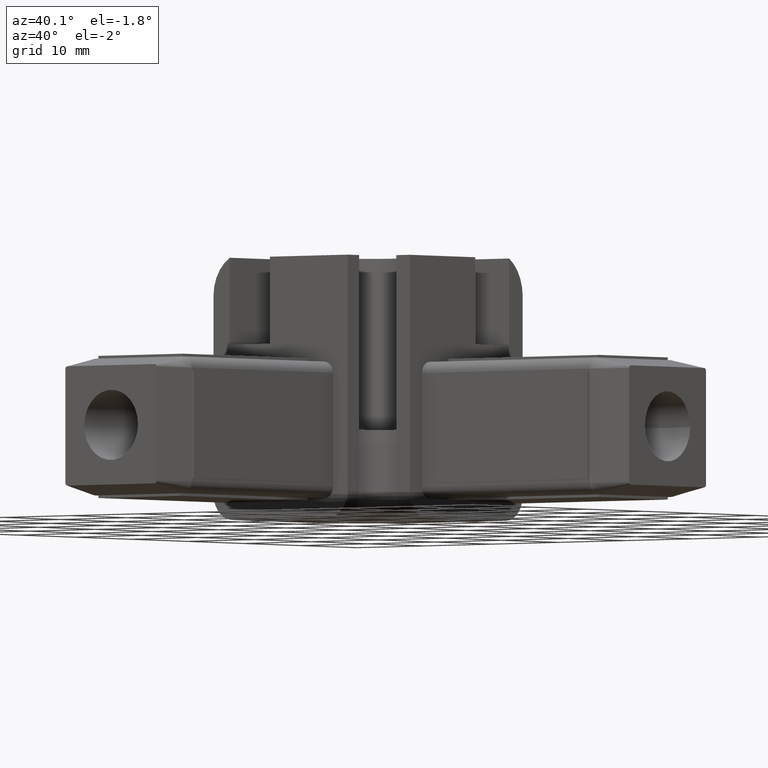
[diagram: clean part render]
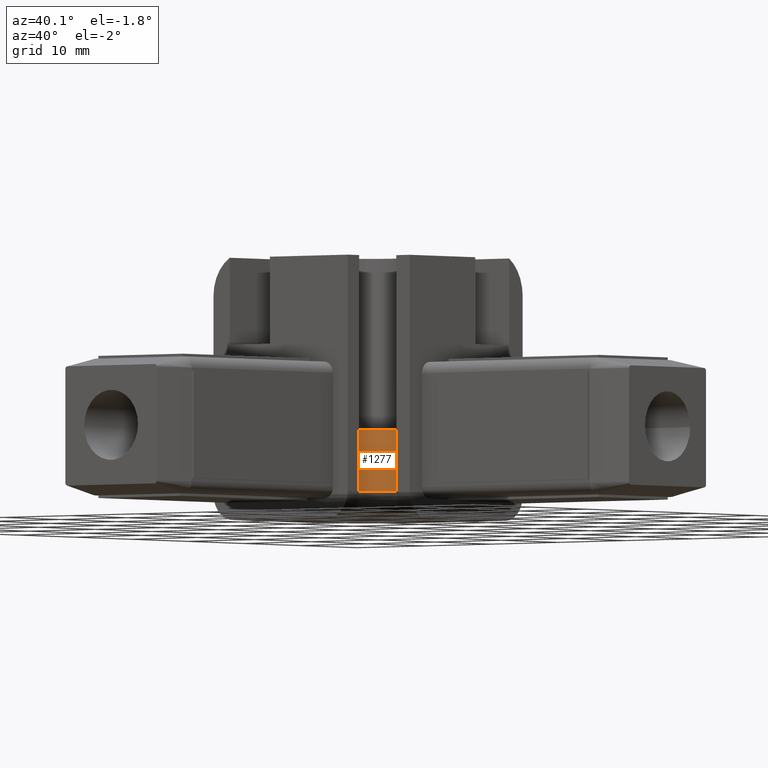
[diagram: same view with one face highlighted and labeled with its STEP entity id]
A machine part, auxiliary view. The second image highlights one B-rep face of the part: STEP entity #1277.
In plain terms, the highlighted cylindrical surface (edge-blend (fillet) strip) has radius 3 mm, axis along (0, 0, -1).
Its self-contained STEP definition (entity closure, byte-faithful):
#261=CARTESIAN_POINT('',(-31.999990346764093,-9.999999999999886,-0.000000076293999));
#262=VERTEX_POINT('',#261);
#415=CARTESIAN_POINT('',(-34.999990346763980,-12.999999999999886,-0.000000076293999));
#416=VERTEX_POINT('',#415);
#918=CARTESIAN_POINT('',(-31.999990346763980,-12.999999999999886,-0.000000076293999));
#919=DIRECTION('',(0.0,0.0,-1.0));
#920=DIRECTION('',(-1.0,0.0,0.0));
#921=AXIS2_PLACEMENT_3D('',#918,#919,#920);
#922=CIRCLE('',#921,3.0);
#923=EDGE_CURVE('',#416,#262,#922,.T.);
#1048=CARTESIAN_POINT('',(-31.999990346763980,-9.999999999999886,-6.999999999999719));
#1049=VERTEX_POINT('',#1048);
#1197=CARTESIAN_POINT('',(-34.999990346763980,-12.999999999999886,-6.999999999999719));
#1198=VERTEX_POINT('',#1197);
#1243=CARTESIAN_POINT('',(-31.999990346763980,-9.999999999999886,-6.999999999999719));
#1244=DIRECTION('',(0.0,0.0,1.0));
#1245=VECTOR('',#1244,6.999999923705722);
#1246=LINE('',#1243,#1245);
#1247=EDGE_CURVE('',#1049,#262,#1246,.T.);
#1255=CARTESIAN_POINT('',(-31.999990346763980,-12.999999999999886,-9.999999999999719));
#1256=DIRECTION('',(0.0,0.0,-1.0));
#1257=DIRECTION('',(-1.0,0.0,0.0));
#1258=AXIS2_PLACEMENT_3D('',#1255,#1256,#1257);
#1259=CYLINDRICAL_SURFACE('',#1258,3.0);
#1260=CARTESIAN_POINT('',(-34.999990346763980,-12.999999999999886,-6.999999999999719));
#1261=DIRECTION('',(0.0,0.0,1.0));
#1262=VECTOR('',#1261,6.999999923705722);
#1263=LINE('',#1260,#1262);
#1264=EDGE_CURVE('',#1198,#416,#1263,.T.);
#1265=ORIENTED_EDGE('',*,*,#1264,.F.);
#1266=CARTESIAN_POINT('',(-31.999990346763980,-12.999999999999886,-6.999999999999719));
#1267=DIRECTION('',(0.0,0.0,-1.0));
#1268=DIRECTION('',(-1.0,0.0,0.0));
#1269=AXIS2_PLACEMENT_3D('',#1266,#1267,#1268);
#1270=CIRCLE('',#1269,3.0);
#1271=EDGE_CURVE('',#1198,#1049,#1270,.T.);
#1272=ORIENTED_EDGE('',*,*,#1271,.T.);
#1273=ORIENTED_EDGE('',*,*,#1247,.T.);
#1274=ORIENTED_EDGE('',*,*,#923,.F.);
#1275=EDGE_LOOP('',(#1265,#1272,#1273,#1274));
#1276=FACE_OUTER_BOUND('',#1275,.T.);
#1277=ADVANCED_FACE('',(#1276),#1259,.F.);